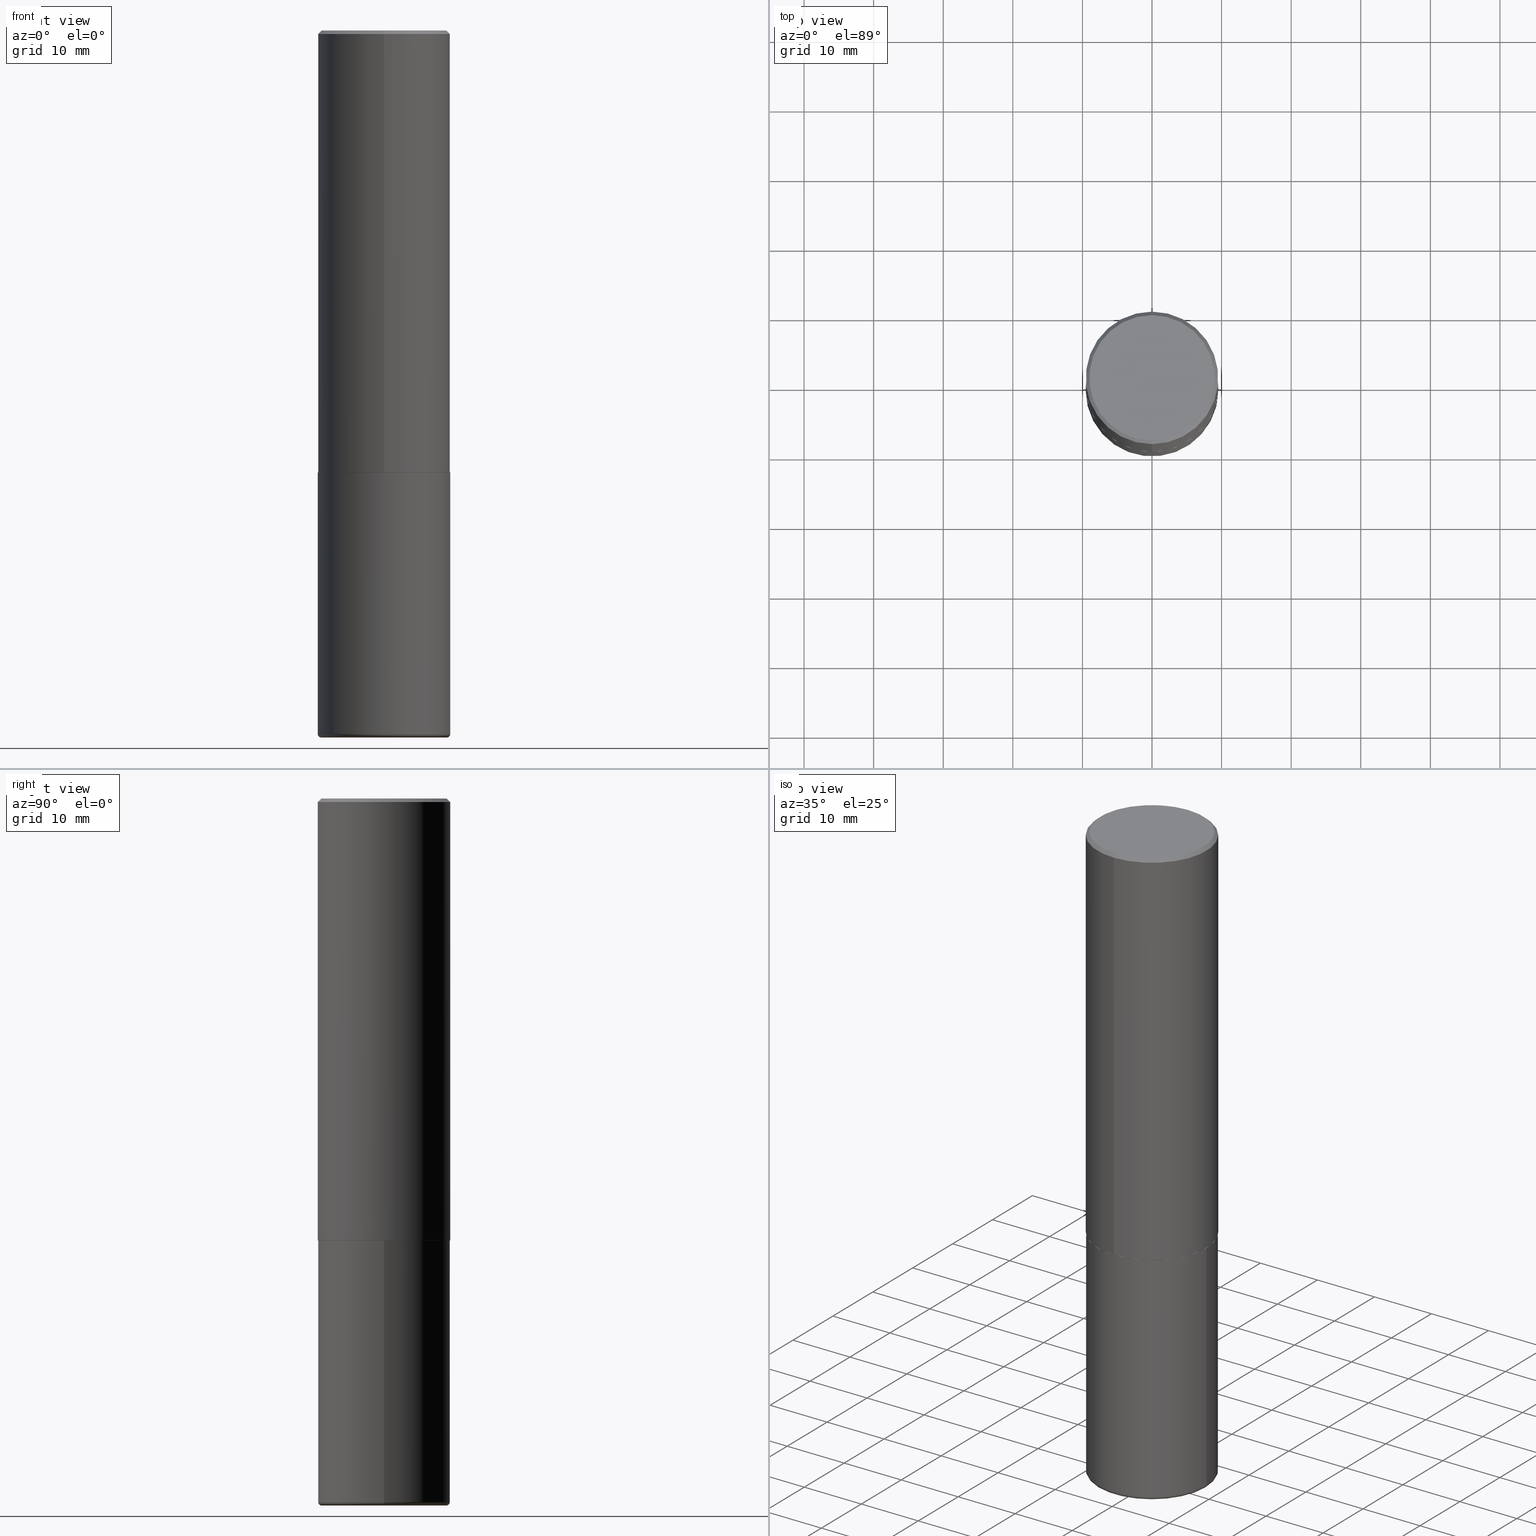
[diagram: canonical four-view strip — front | top / right | iso, engineering-drawing reading convention]
A machine part, canonical four-view strip (front | top / right | iso — engineering-drawing reading convention). The complete STEP part file that produces these views, byte-faithful:
ISO-10303-21;
HEADER;
FILE_DESCRIPTION (( 'STEP AP203' ),
    '1' );
FILE_NAME ('38290.STEP',
    '2024-03-02T21:03:05',
    ( '' ),
    ( '' ),
    'SwSTEP 2.0',
    'SolidWorks 2023',
    '' );
FILE_SCHEMA (( 'CONFIG_CONTROL_DESIGN' ));
ENDSEC;

DATA;
#1 = CARTESIAN_POINT ( 'NONE',  ( 4.888930263412711914E-31, -6.985837315644786578E-17, -0.02000000000000008715 ) ) ;
#2 = DATE_TIME_ROLE ( 'creation_date' ) ;
#3 = FACE_OUTER_BOUND ( 'NONE', #303, .T. ) ;
#4 = ORIENTED_EDGE ( 'NONE', *, *, #342, .T. ) ;
#5 = AXIS2_PLACEMENT_3D ( 'NONE', #1, #327, #164 ) ;
#6 = AXIS2_PLACEMENT_3D ( 'NONE', #175, #411, #150 ) ;
#7 = ADVANCED_FACE ( 'NONE', ( #33 ), #179, .T. ) ;
#8 = DIRECTION ( 'NONE',  ( -6.982962677686266711E-15, -1.000000000000000000, 2.921762560068730595E-15 ) ) ;
#9 = FACE_OUTER_BOUND ( 'NONE', #44, .T. ) ;
#10 = DIRECTION ( 'NONE',  ( -2.445468806185136597E-29, 3.491481338843145583E-15, 1.000000000000000000 ) ) ;
#11 = AXIS2_PLACEMENT_3D ( 'NONE', #15, #362, #361 ) ;
#12 = CARTESIAN_POINT ( 'NONE',  ( 2.478951750578623815E-15, 0.3549999999999999267, -1.205582899487326820E-15 ) ) ;
#13 = CYLINDRICAL_SURFACE ( 'NONE', #183, 0.3750000000000000555 ) ;
#14 = EDGE_CURVE ( 'NONE', #56, #34, #413, .T. ) ;
#15 = CARTESIAN_POINT ( 'NONE',  ( -0.3550000000000000377, -1.137366901664736350E-14, -3.979999999999999982 ) ) ;
#16 = CIRCLE ( 'NONE', #246, 0.3739999999999999991 ) ;
#17 = DIRECTION ( 'NONE',  ( 1.000000000000000000, -6.982962677686265922E-15, 4.876176775795935793E-29 ) ) ;
#18 = ORIENTED_EDGE ( 'NONE', *, *, #205, .T. ) ;
#19 = ORIENTED_EDGE ( 'NONE', *, *, #369, .T. ) ;
#20 = EDGE_CURVE ( 'NONE', #214, #374, #99, .T. ) ;
#21 = AXIS2_PLACEMENT_3D ( 'NONE', #100, #387, #222 ) ;
#22 = DIRECTION ( 'NONE',  ( -2.444465131706345255E-29, 3.492918657822378473E-15, 1.000000000000000000 ) ) ;
#23 = ORIENTED_EDGE ( 'NONE', *, *, #195, .T. ) ;
#24 =( LENGTH_UNIT ( ) NAMED_UNIT ( * ) SI_UNIT ( $, .METRE. ) );
#25 = ORIENTED_EDGE ( 'NONE', *, *, #53, .T. ) ;
#26 = EDGE_CURVE ( 'NONE', #198, #214, #230, .T. ) ;
#27 = EDGE_LOOP ( 'NONE', ( #347, #242, #309, #378 ) ) ;
#28 = APPROVAL_STATUS ( 'not_yet_approved' ) ;
#29 = DIRECTION ( 'NONE',  ( 6.982962677686265922E-15, 1.000000000000000000, -3.494488891895536035E-15 ) ) ;
#30 = CALENDAR_DATE ( 2024, 2, 3 ) ;
#31 = DIRECTION ( 'NONE',  ( 1.000000000000000000, -6.982962677686264344E-15, 0.000000000000000000 ) ) ;
#32 = CALENDAR_DATE ( 2024, 2, 3 ) ;
#33 = FACE_OUTER_BOUND ( 'NONE', #151, .T. ) ;
#34 = VERTEX_POINT ( 'NONE', #95 ) ;
#35 = CC_DESIGN_PERSON_AND_ORGANIZATION_ASSIGNMENT ( #94, #128, ( #174 ) ) ;
#36 = DATE_AND_TIME ( #281, #203 ) ;
#37 = FACE_OUTER_BOUND ( 'NONE', #266, .T. ) ;
#38 = CIRCLE ( 'NONE', #11, 0.01999999999999992409 ) ;
#39 = DIRECTION ( 'NONE',  ( 1.000000000000000000, -6.982962677686266711E-15, 0.000000000000000000 ) ) ;
#40 = CARTESIAN_POINT ( 'NONE',  ( 0.000000000000000000, 0.000000000000000000, 0.000000000000000000 ) ) ;
#41 = CARTESIAN_POINT ( 'NONE',  ( 6.108718364134156127E-29, -8.728803725898123939E-15, -2.498999999999999666 ) ) ;
#42 = CLOSED_SHELL ( 'NONE', ( #132, #396, #7, #69, #365, #97, #409, #211 ) ) ;
#43 = AXIS2_PLACEMENT_3D ( 'NONE', #52, #375, #58 ) ;
#44 = EDGE_LOOP ( 'NONE', ( #408, #343, #25, #93 ) ) ;
#45 = CARTESIAN_POINT ( 'NONE',  ( 2.660982545421636724E-15, 0.3739999999999912839, -2.500000000000001332 ) ) ;
#46 = DIRECTION ( 'NONE',  ( 1.000000000000000000, -6.982962677686263555E-15, 0.000000000000000000 ) ) ;
#47 = EDGE_CURVE ( 'NONE', #412, #209, #399, .T. ) ;
#48 = DIRECTION ( 'NONE',  ( 1.000000000000000000, -6.982962677686264344E-15, 0.000000000000000000 ) ) ;
#49 = CIRCLE ( 'NONE', #325, 0.3750000000000002776 ) ;
#50 = APPLICATION_PROTOCOL_DEFINITION ( 'international standard', 'config_control_design', 1994, #310 ) ;
#51 = ORIENTED_EDGE ( 'NONE', *, *, #152, .F. ) ;
#52 = CARTESIAN_POINT ( 'NONE',  ( 4.888930263412711914E-31, -6.985837315644786578E-17, -0.02000000000000008715 ) ) ;
#53 = EDGE_CURVE ( 'NONE', #34, #54, #314, .T. ) ;
#54 = VERTEX_POINT ( 'NONE', #356 ) ;
#55 = DIRECTION ( 'NONE',  ( -2.445468806185136877E-29, 3.491481338843145188E-15, 1.000000000000000000 ) ) ;
#56 = VERTEX_POINT ( 'NONE', #68 ) ;
#57 = CIRCLE ( 'NONE', #191, 0.3750000000000000555 ) ;
#58 = DIRECTION ( 'NONE',  ( -6.982962677686265922E-15, -1.000000000000000000, 3.494488891895536035E-15 ) ) ;
#59 = ORIENTED_EDGE ( 'NONE', *, *, #14, .F. ) ;
#60 = ADVANCED_FACE ( 'NONE', ( #3 ), #359, .T. ) ;
#61 = CARTESIAN_POINT ( 'NONE',  ( 0.000000000000000000, 0.000000000000000000, 0.000000000000000000 ) ) ;
#62 = EDGE_LOOP ( 'NONE', ( #23, #18, #276, #235 ) ) ;
#63 = DIRECTION ( 'NONE',  ( -4.851104656540961119E-15, -0.7071067811865495711, -0.7071067811865454633 ) ) ;
#64 = APPROVAL_DATE_TIME ( #36, #136 ) ;
#65 = VECTOR ( 'NONE', #77, 39.37007874015748143 ) ;
#66 = LOCAL_TIME ( 16, 3, 5.000000000000000000, #196 ) ;
#67 = APPROVAL_DATE_TIME ( #221, #189 ) ;
#68 = CARTESIAN_POINT ( 'NONE',  ( -0.3749999999999999445, -1.123156046949534334E-14, -3.979999999999999982 ) ) ;
#69 = ADVANCED_FACE ( 'NONE', ( #37 ), #131, .T. ) ;
#70 = ORIENTED_EDGE ( 'NONE', *, *, #342, .F. ) ;
#71 = CALENDAR_DATE ( 2024, 2, 3 ) ;
#72 = PERSON_AND_ORGANIZATION_ROLE ( 'design_supplier' ) ;
#73 = DIRECTION ( 'NONE',  ( -2.444465131706345255E-29, 3.492918657822378473E-15, 1.000000000000000000 ) ) ;
#74 = AXIS2_PLACEMENT_3D ( 'NONE', #379, #147, #268 ) ;
#75 = FACE_OUTER_BOUND ( 'NONE', #113, .T. ) ;
#76 = CARTESIAN_POINT ( 'NONE',  ( 2.548781377355487113E-15, 0.3549999999999999267, -1.171179675447709813E-15 ) ) ;
#77 = DIRECTION ( 'NONE',  ( -2.444465131706345255E-29, 3.492918657822378868E-15, 1.000000000000000000 ) ) ;
#78 = CLOSED_SHELL ( 'NONE', ( #218, #267, #275, #82, #60, #391 ) ) ;
#79 = DIMENSIONAL_EXPONENTS ( 1.000000000000000000, 0.000000000000000000, 0.000000000000000000, 0.000000000000000000, 0.000000000000000000, 0.000000000000000000, 0.000000000000000000 ) ;
#80 = AXIS2_PLACEMENT_3D ( 'NONE', #166, #138, #295 ) ;
#81 = CARTESIAN_POINT ( 'NONE',  ( 6.113672015462840371E-29, -8.728703347107863365E-15, -2.499999999999999556 ) ) ;
#82 = ADVANCED_FACE ( 'NONE', ( #9 ), #137, .T. ) ;
#83 = ORIENTED_EDGE ( 'NONE', *, *, #239, .T. ) ;
#84 = AXIS2_PLACEMENT_3D ( 'NONE', #157, #289, #8 ) ;
#85 = MECHANICAL_CONTEXT ( 'NONE', #310, 'mechanical' ) ;
#86 = ORIENTED_EDGE ( 'NONE', *, *, #170, .F. ) ;
#87 = PRODUCT ( '38290', '38290', '', ( #85 ) ) ;
#88 = CARTESIAN_POINT ( 'NONE',  ( -2.572686749164323547E-15, -0.3750000000000001110, -0.01999999999999877570 ) ) ;
#89 = ORIENTED_EDGE ( 'NONE', *, *, #416, .T. ) ;
#90 = ORIENTED_EDGE ( 'NONE', *, *, #261, .T. ) ;
#91 = LOCAL_TIME ( 16, 3, 5.000000000000000000, #355 ) ;
#92 = FACE_OUTER_BOUND ( 'NONE', #27, .T. ) ;
#93 = ORIENTED_EDGE ( 'NONE', *, *, #315, .F. ) ;
#94 = PERSON_AND_ORGANIZATION ( #291, #326 ) ;
#95 = CARTESIAN_POINT ( 'NONE',  ( 0.3749999999999999445, -1.651470673272807063E-14, -3.979999999999999982 ) ) ;
#96 = PERSON_AND_ORGANIZATION ( #291, #326 ) ;
#97 = ADVANCED_FACE ( 'NONE', ( #249 ), #388, .T. ) ;
#98 = CIRCLE ( 'NONE', #414, 0.3750000000000000555 ) ;
#99 = LINE ( 'NONE', #133, #366 ) ;
#100 = CARTESIAN_POINT ( 'NONE',  ( 9.732965848616844417E-29, -1.389609572859572061E-14, -3.979999999999999982 ) ) ;
#101 = APPLICATION_CONTEXT ( 'configuration controlled 3d designs of mechanical parts and assemblies' ) ;
#102 = DIRECTION ( 'NONE',  ( 2.444465131706345255E-29, -3.492918657822378473E-15, -1.000000000000000000 ) ) ;
#103 = DIRECTION ( 'NONE',  ( 2.444465131706344694E-29, -3.492918657822378868E-15, -1.000000000000000000 ) ) ;
#104 = AXIS2_PLACEMENT_3D ( 'NONE', #339, #115, #240 ) ;
#105 = CARTESIAN_POINT ( 'NONE',  ( 6.113672015462840371E-29, -8.728703347107863365E-15, -2.499999999999999556 ) ) ;
#106 = CARTESIAN_POINT ( 'NONE',  ( -0.3750000000000000555, -8.647864278751415502E-15, -2.499999999999999556 ) ) ;
#107 = CARTESIAN_POINT ( 'NONE',  ( -2.618611004132290852E-15, -0.3750000000000090483, -2.498999999999998778 ) ) ;
#108 = EDGE_CURVE ( 'NONE', #54, #238, #98, .T. ) ;
#109 = AXIS2_PLACEMENT_3D ( 'NONE', #201, #297, #398 ) ;
#110 = DIRECTION ( 'NONE',  ( -2.444465131706345255E-29, 3.492918657822378868E-15, 1.000000000000000000 ) ) ;
#111 = CYLINDRICAL_SURFACE ( 'NONE', #330, 0.3750000000000001665 ) ;
#112 = DIRECTION ( 'NONE',  ( 2.438088387897960049E-29, -3.491481338843145188E-15, -1.000000000000000000 ) ) ;
#113 = EDGE_LOOP ( 'NONE', ( #4, #148 ) ) ;
#114 = CIRCLE ( 'NONE', #307, 0.3750000000000000555 ) ;
#115 = DIRECTION ( 'NONE',  ( -2.444465131706345255E-29, 3.492918657822378473E-15, 1.000000000000000000 ) ) ;
#116 = ORIENTED_EDGE ( 'NONE', *, *, #108, .T. ) ;
#117 = DESIGN_CONTEXT ( 'detailed design', #101, 'design' ) ;
#118 = CARTESIAN_POINT ( 'NONE',  ( -2.504081769186608216E-15, -0.3549999999999999267, 1.308792571606178433E-15 ) ) ;
#119 = ORIENTED_EDGE ( 'NONE', *, *, #283, .F. ) ;
#120 = ORIENTED_EDGE ( 'NONE', *, *, #205, .F. ) ;
#121 = CARTESIAN_POINT ( 'NONE',  ( 0.000000000000000000, 0.000000000000000000, 0.000000000000000000 ) ) ;
#122 = EDGE_CURVE ( 'NONE', #412, #376, #158, .T. ) ;
#123 = VERTEX_POINT ( 'NONE', #256 ) ;
#124 = COORDINATED_UNIVERSAL_TIME_OFFSET ( 5, 0, .BEHIND. ) ;
#125 = APPROVAL_ROLE ( '' ) ;
#126 = DIRECTION ( 'NONE',  ( 1.000000000000000000, -6.982962677686265922E-15, 4.876176775795935793E-29 ) ) ;
#127 = ORIENTED_EDGE ( 'NONE', *, *, #47, .F. ) ;
#128 = PERSON_AND_ORGANIZATION_ROLE ( 'classification_officer' ) ;
#129 = CARTESIAN_POINT ( 'NONE',  ( -2.572686749164323547E-15, -0.3750000000000001110, -0.01999999999999877570 ) ) ;
#130 = CALENDAR_DATE ( 2024, 2, 3 ) ;
#131 = CONICAL_SURFACE ( 'NONE', #5, 0.3750000000000000555, 0.7853981633974477239 ) ;
#132 = ADVANCED_FACE ( 'NONE', ( #225 ), #139, .T. ) ;
#133 = CARTESIAN_POINT ( 'NONE',  ( 2.657429831742835431E-15, 0.3739999999999912839, -2.500000000000001332 ) ) ;
#134 = DATE_TIME_ROLE ( 'classification_date' ) ;
#135 = CARTESIAN_POINT ( 'NONE',  ( 6.113672015462840371E-29, -8.728703347107863365E-15, -2.499999999999999556 ) ) ;
#136 = APPROVAL ( #28, 'UNSPECIFIED' ) ;
#137 = CYLINDRICAL_SURFACE ( 'NONE', #149, 0.3750000000000000555 ) ;
#138 = DIRECTION ( 'NONE',  ( -6.982962677686266711E-15, -1.000000000000000000, 3.491481338843145583E-15 ) ) ;
#139 = CONICAL_SURFACE ( 'NONE', #394, 0.3739999999999999991, 0.7853981633974141952 ) ;
#140 = DIRECTION ( 'NONE',  ( -2.444465131706345255E-29, 3.492918657822378473E-15, 1.000000000000000000 ) ) ;
#141 = PRODUCT_DEFINITION ( 'UNKNOWN', '', #380, #117 ) ;
#142 = CARTESIAN_POINT ( 'NONE',  ( 2.664535259100376486E-15, 0.3750000000000001665, -1.309844496683392470E-15 ) ) ;
#143 = CARTESIAN_POINT ( 'NONE',  ( -2.611628041454602471E-15, -0.3740000000000087699, -2.499999999999999112 ) ) ;
#144 = VECTOR ( 'NONE', #390, 39.37007874015748143 ) ;
#145 = FACE_OUTER_BOUND ( 'NONE', #176, .T. ) ;
#146 = ORIENTED_EDGE ( 'NONE', *, *, #26, .T. ) ;
#147 = DIRECTION ( 'NONE',  ( -2.445468806185136597E-29, 3.491481338843145583E-15, 1.000000000000000000 ) ) ;
#148 = ORIENTED_EDGE ( 'NONE', *, *, #47, .T. ) ;
#149 = AXIS2_PLACEMENT_3D ( 'NONE', #193, #319, #126 ) ;
#150 = DIRECTION ( 'NONE',  ( -6.982962677686265922E-15, -1.000000000000000000, 3.492918657822378868E-15 ) ) ;
#151 = EDGE_LOOP ( 'NONE', ( #127, #305, #154, #272 ) ) ;
#152 = EDGE_CURVE ( 'NONE', #278, #313, #345, .T. ) ;
#153 = CARTESIAN_POINT ( 'NONE',  ( 9.781875224740546387E-29, -1.396592535537258233E-14, -4.000000000000000000 ) ) ;
#154 = ORIENTED_EDGE ( 'NONE', *, *, #348, .T. ) ;
#155 = ORIENTED_EDGE ( 'NONE', *, *, #26, .F. ) ;
#156 = PERSON_AND_ORGANIZATION ( #291, #326 ) ;
#157 = CARTESIAN_POINT ( 'NONE',  ( 6.111162829265863557E-29, -8.732296644555947170E-15, -2.500000000000000000 ) ) ;
#158 = LINE ( 'NONE', #129, #316 ) ;
#159 = PERSON_AND_ORGANIZATION ( #291, #326 ) ;
#160 = CARTESIAN_POINT ( 'NONE',  ( 4.888930263412711914E-31, -6.985837315644786578E-17, -0.02000000000000008715 ) ) ;
#161 = AXIS2_PLACEMENT_3D ( 'NONE', #41, #168, #244 ) ;
#162 = PERSON_AND_ORGANIZATION_ROLE ( 'creator' ) ;
#163 = AXIS2_PLACEMENT_3D ( 'NONE', #337, #213, #344 ) ;
#164 = DIRECTION ( 'NONE',  ( 6.982962677686265922E-15, 1.000000000000000000, -3.494488891895536035E-15 ) ) ;
#165 = EDGE_LOOP ( 'NONE', ( #340, #51 ) ) ;
#166 = CARTESIAN_POINT ( 'NONE',  ( 0.3550000000000000377, -1.637504747917434403E-14, -3.979999999999999982 ) ) ;
#167 = AXIS2_PLACEMENT_3D ( 'NONE', #160, #102, #29 ) ;
#168 = DIRECTION ( 'NONE',  ( -2.444465131706345255E-29, 3.492918657822378473E-15, 1.000000000000000000 ) ) ;
#169 = CIRCLE ( 'NONE', #161, 0.3750000000000002776 ) ;
#170 = EDGE_CURVE ( 'NONE', #123, #376, #57, .T. ) ;
#171 = CARTESIAN_POINT ( 'NONE',  ( 9.781875224740546387E-29, -1.396592535537258233E-14, -4.000000000000000000 ) ) ;
#172 = DIRECTION ( 'NONE',  ( -6.982962677686266711E-15, -1.000000000000000000, 2.921762560068730595E-15 ) ) ;
#173 = DIRECTION ( 'NONE',  ( -2.444465131706345255E-29, 3.492918657822378473E-15, 1.000000000000000000 ) ) ;
#174 = SECURITY_CLASSIFICATION ( '', '', #252 ) ;
#175 = CARTESIAN_POINT ( 'NONE',  ( 6.111162829265863557E-29, -8.732296644555947170E-15, -2.500000000000000000 ) ) ;
#176 = EDGE_LOOP ( 'NONE', ( #155, #119 ) ) ;
#177 = ORIENTED_EDGE ( 'NONE', *, *, #335, .T. ) ;
#178 = CYLINDRICAL_SURFACE ( 'NONE', #181, 0.3750000000000001665 ) ;
#179 = CONICAL_SURFACE ( 'NONE', #167, 0.3750000000000000555, 0.7853981633974477239 ) ;
#180 = ORIENTED_EDGE ( 'NONE', *, *, #311, .T. ) ;
#181 = AXIS2_PLACEMENT_3D ( 'NONE', #61, #22, #306 ) ;
#182 = CC_DESIGN_PERSON_AND_ORGANIZATION_ASSIGNMENT ( #159, #162, ( #380 ) ) ;
#183 = AXIS2_PLACEMENT_3D ( 'NONE', #40, #10, #17 ) ;
#184 = CC_DESIGN_APPROVAL ( #189, ( #174 ) ) ;
#185 =( NAMED_UNIT ( * ) PLANE_ANGLE_UNIT ( ) SI_UNIT ( $, .RADIAN. ) );
#186 = ORIENTED_EDGE ( 'NONE', *, *, #108, .F. ) ;
#187 = LINE ( 'NONE', #236, #301 ) ;
#188 = EDGE_LOOP ( 'NONE', ( #146, #405, #223, #243 ) ) ;
#189 = APPROVAL ( #280, 'UNSPECIFIED' ) ;
#190 = DIRECTION ( 'NONE',  ( -2.444465131706345255E-29, 3.492918657822378473E-15, 1.000000000000000000 ) ) ;
#191 = AXIS2_PLACEMENT_3D ( 'NONE', #368, #367, #328 ) ;
#192 = PERSON_AND_ORGANIZATION ( #291, #326 ) ;
#193 = CARTESIAN_POINT ( 'NONE',  ( 0.000000000000000000, 0.000000000000000000, 0.000000000000000000 ) ) ;
#194 = APPROVAL_STATUS ( 'not_yet_approved' ) ;
#195 = EDGE_CURVE ( 'NONE', #313, #278, #354, .T. ) ;
#196 = COORDINATED_UNIVERSAL_TIME_OFFSET ( 5, 0, .BEHIND. ) ;
#197 = LOCAL_TIME ( 16, 3, 5.000000000000000000, #382 ) ;
#198 = VERTEX_POINT ( 'NONE', #143 ) ;
#199 = PLANE ( 'NONE',  #237 ) ;
#200 = FACE_OUTER_BOUND ( 'NONE', #410, .T. ) ;
#201 = CARTESIAN_POINT ( 'NONE',  ( 9.732965848616844417E-29, -1.389609572859572061E-14, -3.979999999999999982 ) ) ;
#202 = VECTOR ( 'NONE', #110, 39.37007874015748143 ) ;
#203 = LOCAL_TIME ( 16, 3, 5.000000000000000000, #124 ) ;
#204 = CARTESIAN_POINT ( 'NONE',  ( 6.111162829265863557E-29, -8.732296644555947170E-15, -2.500000000000000000 ) ) ;
#205 = EDGE_CURVE ( 'NONE', #278, #56, #38, .T. ) ;
#206 = DIRECTION ( 'NONE',  ( -2.445468806185136597E-29, 3.491481338843145583E-15, 1.000000000000000000 ) ) ;
#207 = ORIENTED_EDGE ( 'NONE', *, *, #122, .F. ) ;
#208 = LINE ( 'NONE', #210, #251 ) ;
#209 = VERTEX_POINT ( 'NONE', #76 ) ;
#210 = CARTESIAN_POINT ( 'NONE',  ( -0.3750000000000000555, 2.664535259100376091E-15, -1.844600658845589598E-29 ) ) ;
#211 = ADVANCED_FACE ( 'NONE', ( #75 ), #199, .F. ) ;
#212 = VERTEX_POINT ( 'NONE', #107 ) ;
#213 = DIRECTION ( 'NONE',  ( 0.000000000000000000, 0.000000000000000000, 1.000000000000000000 ) ) ;
#214 = VERTEX_POINT ( 'NONE', #45 ) ;
#215 = CIRCLE ( 'NONE', #43, 0.3750000000000000555 ) ;
#216 = PLANE ( 'NONE',  #6 ) ;
#217 = ORIENTED_EDGE ( 'NONE', *, *, #152, .T. ) ;
#218 = ADVANCED_FACE ( 'NONE', ( #298 ), #13, .T. ) ;
#219 = ORIENTED_EDGE ( 'NONE', *, *, #293, .T. ) ;
#220 = CIRCLE ( 'NONE', #104, 0.3549999999999999267 ) ;
#221 = DATE_AND_TIME ( #30, #415 ) ;
#222 = DIRECTION ( 'NONE',  ( 1.000000000000000000, -6.982962677686269077E-15, 4.883557194083113462E-29 ) ) ;
#223 = ORIENTED_EDGE ( 'NONE', *, *, #320, .F. ) ;
#224 = APPROVAL_DATE_TIME ( #351, #253 ) ;
#225 = FACE_OUTER_BOUND ( 'NONE', #188, .T. ) ;
#226 = APPROVAL_PERSON_ORGANIZATION ( #192, #136, #125 ) ;
#227 = CARTESIAN_POINT ( 'NONE',  ( -2.618611004132351200E-15, -0.3750000000000001665, 1.309844496683392470E-15 ) ) ;
#228 = DIRECTION ( 'NONE',  ( -2.445468806185136597E-29, 3.491481338843145583E-15, 1.000000000000000000 ) ) ;
#229 = DIRECTION ( 'NONE',  ( 4.937700262164544887E-15, 0.7071067811865446862, -0.7071067811865503483 ) ) ;
#230 = CIRCLE ( 'NONE', #286, 0.3739999999999999991 ) ;
#231 = LINE ( 'NONE', #260, #263 ) ;
#232 = CARTESIAN_POINT ( 'NONE',  ( 0.3550000000000000377, -1.644487710595120733E-14, -4.000000000000000000 ) ) ;
#233 = CC_DESIGN_PERSON_AND_ORGANIZATION_ASSIGNMENT ( #156, #322, ( #87 ) ) ;
#234 = FACE_OUTER_BOUND ( 'NONE', #165, .T. ) ;
#235 = ORIENTED_EDGE ( 'NONE', *, *, #311, .F. ) ;
#236 = CARTESIAN_POINT ( 'NONE',  ( -2.611628041454602471E-15, -0.3740000000000087699, -2.499999999999999112 ) ) ;
#237 = AXIS2_PLACEMENT_3D ( 'NONE', #12, #103, #334 ) ;
#238 = VERTEX_POINT ( 'NONE', #106 ) ;
#239 = EDGE_CURVE ( 'NONE', #209, #123, #231, .T. ) ;
#240 = DIRECTION ( 'NONE',  ( -6.982962677686265922E-15, -1.000000000000000000, 3.492918657822378079E-15 ) ) ;
#241 = PRODUCT_DEFINITION_SHAPE ( 'NONE', 'NONE',  #141 ) ;
#242 = ORIENTED_EDGE ( 'NONE', *, *, #265, .T. ) ;
#243 = ORIENTED_EDGE ( 'NONE', *, *, #416, .F. ) ;
#244 = DIRECTION ( 'NONE',  ( -6.982962677686266711E-15, -1.000000000000000000, 2.913971193241878794E-15 ) ) ;
#245 = ORIENTED_EDGE ( 'NONE', *, *, #53, .F. ) ;
#246 = AXIS2_PLACEMENT_3D ( 'NONE', #204, #333, #172 ) ;
#247 = CC_DESIGN_APPROVAL ( #136, ( #141 ) ) ;
#248 = PERSON_AND_ORGANIZATION ( #291, #326 ) ;
#249 = FACE_OUTER_BOUND ( 'NONE', #350, .T. ) ;
#250 = COORDINATED_UNIVERSAL_TIME_OFFSET ( 5, 0, .BEHIND. ) ;
#251 = VECTOR ( 'NONE', #55, 39.37007874015748143 ) ;
#252 = SECURITY_CLASSIFICATION_LEVEL ( 'unclassified' ) ;
#253 = APPROVAL ( #194, 'UNSPECIFIED' ) ;
#254 = DIRECTION ( 'NONE',  ( -6.982962677686266711E-15, -1.000000000000000000, 2.921762560068730595E-15 ) ) ;
#255 = PERSON_AND_ORGANIZATION_ROLE ( 'creator' ) ;
#256 = CARTESIAN_POINT ( 'NONE',  ( 2.618611004132350411E-15, 0.3749999999999999445, -0.02000000000000139513 ) ) ;
#257 = DIRECTION ( 'NONE',  ( -6.982962677686266711E-15, -1.000000000000000000, 2.913971193241878794E-15 ) ) ;
#258 = CC_DESIGN_PERSON_AND_ORGANIZATION_ASSIGNMENT ( #284, #72, ( #380 ) ) ;
#259 = CARTESIAN_POINT ( 'NONE',  ( 9.781875224740546387E-29, -1.396592535537258233E-14, -4.000000000000000000 ) ) ;
#260 = CARTESIAN_POINT ( 'NONE',  ( 2.618611004132350411E-15, 0.3749999999999999445, -0.02000000000000139513 ) ) ;
#261 = EDGE_CURVE ( 'NONE', #374, #212, #49, .T. ) ;
#262 = FACE_OUTER_BOUND ( 'NONE', #62, .T. ) ;
#263 = VECTOR ( 'NONE', #229, 39.37007874015748143 ) ;
#264 = DIRECTION ( 'NONE',  ( 2.438088387897960049E-29, -3.491481338843145188E-15, -1.000000000000000000 ) ) ;
#265 = EDGE_CURVE ( 'NONE', #374, #123, #395, .T. ) ;
#266 = EDGE_LOOP ( 'NONE', ( #207, #70, #83, #308 ) ) ;
#267 = ADVANCED_FACE ( 'NONE', ( #262 ), #279, .T. ) ;
#268 = DIRECTION ( 'NONE',  ( 1.000000000000000000, -6.982962677686266711E-15, 0.000000000000000000 ) ) ;
#269 = AXIS2_PLACEMENT_3D ( 'NONE', #153, #112, #341 ) ;
#270 = ORIENTED_EDGE ( 'NONE', *, *, #20, .F. ) ;
#271 = MANIFOLD_SOLID_BREP ( 'Body-Move/Copy2[1]', #78 ) ;
#272 = ORIENTED_EDGE ( 'NONE', *, *, #239, .F. ) ;
#273 = MANIFOLD_SOLID_BREP ( 'Body-Move/Copy2[2]', #42 ) ;
#274 = PLANE ( 'NONE',  #269 ) ;
#275 = ADVANCED_FACE ( 'NONE', ( #200 ), #401, .F. ) ;
#276 = ORIENTED_EDGE ( 'NONE', *, *, #335, .F. ) ;
#277 = DATE_AND_TIME ( #32, #91 ) ;
#278 = VERTEX_POINT ( 'NONE', #331 ) ;
#279 = TOROIDAL_SURFACE ( 'NONE', #109, 0.3550000000000000377, 0.01999999999999988939 ) ;
#280 = APPROVAL_STATUS ( 'not_yet_approved' ) ;
#281 = CALENDAR_DATE ( 2024, 2, 3 ) ;
#282 = CARTESIAN_POINT ( 'NONE',  ( -1.681949631662511627E-45, 2.403353262744440834E-31, 6.880644807923424831E-17 ) ) ;
#283 = EDGE_CURVE ( 'NONE', #214, #198, #16, .T. ) ;
#284 = PERSON_AND_ORGANIZATION ( #291, #326 ) ;
#285 = DIRECTION ( 'NONE',  ( -2.445468806185136597E-29, 3.491481338843145583E-15, 1.000000000000000000 ) ) ;
#286 = AXIS2_PLACEMENT_3D ( 'NONE', #353, #73, #254 ) ;
#287 = AXIS2_PLACEMENT_3D ( 'NONE', #171, #228, #392 ) ;
#288 =( GEOMETRIC_REPRESENTATION_CONTEXT ( 3 ) GLOBAL_UNCERTAINTY_ASSIGNED_CONTEXT ( ( #321 ) ) GLOBAL_UNIT_ASSIGNED_CONTEXT ( ( #404, #185, #403 ) ) REPRESENTATION_CONTEXT ( 'NONE', 'WORKASPACE' ) );
#289 = DIRECTION ( 'NONE',  ( -2.444465131706345255E-29, 3.492918657822378473E-15, 1.000000000000000000 ) ) ;
#290 = ORIENTED_EDGE ( 'NONE', *, *, #315, .T. ) ;
#291 = PERSON ( 'UNSPECIFIED', 'UNSPECIFIED', 'UNSPECIFIED', ('UNSPECIFIED'), ('UNSPECIFIED'), ('UNSPECIFIED') ) ;
#292 = DIRECTION ( 'NONE',  ( -6.982962677686265922E-15, -1.000000000000000000, 3.492918657822378079E-15 ) ) ;
#293 = EDGE_CURVE ( 'NONE', #212, #376, #299, .T. ) ;
#294 = EDGE_LOOP ( 'NONE', ( #177, #19, #186, #245 ) ) ;
#295 = DIRECTION ( 'NONE',  ( 1.000000000000000000, -6.982962677686262766E-15, 0.000000000000000000 ) ) ;
#296 = AXIS2_PLACEMENT_3D ( 'NONE', #81, #264, #329 ) ;
#297 = DIRECTION ( 'NONE',  ( -2.445468806185136597E-29, 3.491481338843145583E-15, 1.000000000000000000 ) ) ;
#298 = FACE_OUTER_BOUND ( 'NONE', #294, .T. ) ;
#299 = LINE ( 'NONE', #227, #202 ) ;
#300 = DIRECTION ( 'NONE',  ( -6.982962677686266711E-15, -1.000000000000000000, 2.921762560068730595E-15 ) ) ;
#301 = VECTOR ( 'NONE', #312, 39.37007874015748854 ) ;
#302 = DIRECTION ( 'NONE',  ( -6.982962677686266711E-15, -1.000000000000000000, 3.492918657822378473E-15 ) ) ;
#303 = EDGE_LOOP ( 'NONE', ( #120, #217, #180, #59 ) ) ;
#304 = CARTESIAN_POINT ( 'NONE',  ( 2.664535259100408040E-15, 0.3749999999999915623, -2.499000000000000998 ) ) ;
#305 = ORIENTED_EDGE ( 'NONE', *, *, #122, .T. ) ;
#306 = DIRECTION ( 'NONE',  ( -6.982962677686266711E-15, -1.000000000000000000, 3.492918657822378473E-15 ) ) ;
#307 = AXIS2_PLACEMENT_3D ( 'NONE', #105, #206, #48 ) ;
#308 = ORIENTED_EDGE ( 'NONE', *, *, #170, .T. ) ;
#309 = ORIENTED_EDGE ( 'NONE', *, *, #348, .F. ) ;
#310 = APPLICATION_CONTEXT ( 'configuration controlled 3d designs of mechanical parts and assemblies' ) ;
#311 = EDGE_CURVE ( 'NONE', #313, #34, #400, .T. ) ;
#312 = DIRECTION ( 'NONE',  ( -4.937700262164378437E-15, -0.7071067811865208164, 0.7071067811865739960 ) ) ;
#313 = VERTEX_POINT ( 'NONE', #232 ) ;
#314 = LINE ( 'NONE', #383, #144 ) ;
#315 = EDGE_CURVE ( 'NONE', #238, #54, #114, .T. ) ;
#316 = VECTOR ( 'NONE', #63, 39.37007874015748143 ) ;
#317 = CC_DESIGN_SECURITY_CLASSIFICATION ( #174, ( #380 ) ) ;
#318 = APPROVAL_ROLE ( '' ) ;
#319 = DIRECTION ( 'NONE',  ( -2.445468806185136597E-29, 3.491481338843145583E-15, 1.000000000000000000 ) ) ;
#320 = EDGE_CURVE ( 'NONE', #212, #374, #169, .T. ) ;
#321 = UNCERTAINTY_MEASURE_WITH_UNIT (LENGTH_MEASURE( 1.000000000000000082E-05 ), #404, 'distance_accuracy_value', 'NONE');
#322 = PERSON_AND_ORGANIZATION_ROLE ( 'design_owner' ) ;
#323 = APPLICATION_PROTOCOL_DEFINITION ( 'international standard', 'config_control_design', 1994, #101 ) ;
#324 = CARTESIAN_POINT ( 'NONE',  ( 9.732965848616844417E-29, -1.389609572859572061E-14, -3.979999999999999982 ) ) ;
#325 = AXIS2_PLACEMENT_3D ( 'NONE', #363, #140, #257 ) ;
#326 = ORGANIZATION ( 'UNSPECIFIED', 'UNSPECIFIED', '' ) ;
#327 = DIRECTION ( 'NONE',  ( 2.444465131706345255E-29, -3.492918657822378473E-15, -1.000000000000000000 ) ) ;
#328 = DIRECTION ( 'NONE',  ( -6.982962677686265922E-15, -1.000000000000000000, 3.494488891895536035E-15 ) ) ;
#329 = DIRECTION ( 'NONE',  ( -1.000000000000000000, 6.982962677686265922E-15, -4.876176775795935793E-29 ) ) ;
#330 = AXIS2_PLACEMENT_3D ( 'NONE', #121, #407, #302 ) ;
#331 = CARTESIAN_POINT ( 'NONE',  ( -0.3550000000000000377, -1.133752955645978664E-14, -4.000000000000000000 ) ) ;
#332 = CC_DESIGN_DATE_AND_TIME_ASSIGNMENT ( #277, #2, ( #141 ) ) ;
#333 = DIRECTION ( 'NONE',  ( -2.444465131706345255E-29, 3.492918657822378473E-15, 1.000000000000000000 ) ) ;
#334 = DIRECTION ( 'NONE',  ( 6.982962677686265922E-15, 1.000000000000000000, -3.492918657822378868E-15 ) ) ;
#335 = EDGE_CURVE ( 'NONE', #34, #56, #406, .T. ) ;
#336 = AXIS2_PLACEMENT_3D ( 'NONE', #282, #190, #292 ) ;
#337 = CARTESIAN_POINT ( 'NONE',  ( 0.000000000000000000, 0.000000000000000000, 0.000000000000000000 ) ) ;
#338 = EDGE_LOOP ( 'NONE', ( #381, #90, #219, #86 ) ) ;
#339 = CARTESIAN_POINT ( 'NONE',  ( -1.681949631662511627E-45, 2.403353262744440834E-31, 6.880644807923424831E-17 ) ) ;
#340 = ORIENTED_EDGE ( 'NONE', *, *, #195, .F. ) ;
#341 = DIRECTION ( 'NONE',  ( -1.000000000000000000, 6.982962677686265922E-15, -4.876176775795935793E-29 ) ) ;
#342 = EDGE_CURVE ( 'NONE', #209, #412, #220, .T. ) ;
#343 = ORIENTED_EDGE ( 'NONE', *, *, #14, .T. ) ;
#344 = DIRECTION ( 'NONE',  ( 1.000000000000000000, 0.000000000000000000, 0.000000000000000000 ) ) ;
#345 = CIRCLE ( 'NONE', #372, 0.3550000000000000377 ) ;
#346 = APPROVAL_PERSON_ORGANIZATION ( #384, #189, #318 ) ;
#347 = ORIENTED_EDGE ( 'NONE', *, *, #320, .T. ) ;
#348 = EDGE_CURVE ( 'NONE', #376, #123, #215, .T. ) ;
#349 = FACE_OUTER_BOUND ( 'NONE', #338, .T. ) ;
#350 = EDGE_LOOP ( 'NONE', ( #270, #371, #89, #417 ) ) ;
#351 = DATE_AND_TIME ( #71, #197 ) ;
#352 = DIRECTION ( 'NONE',  ( 5.024295867787889629E-15, 0.7071067811865257013, 0.7071067811865691111 ) ) ;
#353 = CARTESIAN_POINT ( 'NONE',  ( 6.111162829265863557E-29, -8.732296644555947170E-15, -2.500000000000000000 ) ) ;
#354 = CIRCLE ( 'NONE', #287, 0.3550000000000000377 ) ;
#355 = COORDINATED_UNIVERSAL_TIME_OFFSET ( 5, 0, .BEHIND. ) ;
#356 = CARTESIAN_POINT ( 'NONE',  ( 0.3750000000000000555, -1.134731435124021180E-14, -2.499999999999999556 ) ) ;
#357 = CC_DESIGN_PERSON_AND_ORGANIZATION_ASSIGNMENT ( #248, #255, ( #141 ) ) ;
#358 = CARTESIAN_POINT ( 'NONE',  ( 6.111162829265863557E-29, -8.732296644555947170E-15, -2.500000000000000000 ) ) ;
#359 = TOROIDAL_SURFACE ( 'NONE', #21, 0.3550000000000000377, 0.01999999999999988939 ) ;
#360 = CC_DESIGN_APPROVAL ( #253, ( #380 ) ) ;
#361 = DIRECTION ( 'NONE',  ( -1.000000000000000000, 7.105427357600952160E-15, 0.000000000000000000 ) ) ;
#362 = DIRECTION ( 'NONE',  ( 7.105427357601001859E-15, 1.000000000000000000, -3.491481338843145583E-15 ) ) ;
#363 = CARTESIAN_POINT ( 'NONE',  ( 6.108718364134156127E-29, -8.728803725898123939E-15, -2.498999999999999666 ) ) ;
#364 = ADVANCED_BREP_SHAPE_REPRESENTATION ( '38290', ( #271, #273, #163 ), #288 ) ;
#365 = ADVANCED_FACE ( 'NONE', ( #349 ), #111, .T. ) ;
#366 = VECTOR ( 'NONE', #352, 39.37007874015748854 ) ;
#367 = DIRECTION ( 'NONE',  ( -2.444465131706345255E-29, 3.492918657822378473E-15, 1.000000000000000000 ) ) ;
#368 = CARTESIAN_POINT ( 'NONE',  ( 4.888930263412711914E-31, -6.985837315644786578E-17, -0.02000000000000008715 ) ) ;
#369 = EDGE_CURVE ( 'NONE', #56, #238, #208, .T. ) ;
#370 = LENGTH_MEASURE_WITH_UNIT ( LENGTH_MEASURE( 0.02539999999999999897 ), #24 );
#371 = ORIENTED_EDGE ( 'NONE', *, *, #283, .T. ) ;
#372 = AXIS2_PLACEMENT_3D ( 'NONE', #259, #397, #46 ) ;
#373 = APPROVAL_PERSON_ORGANIZATION ( #96, #253, #418 ) ;
#374 = VERTEX_POINT ( 'NONE', #304 ) ;
#375 = DIRECTION ( 'NONE',  ( -2.444465131706345255E-29, 3.492918657822378473E-15, 1.000000000000000000 ) ) ;
#376 = VERTEX_POINT ( 'NONE', #88 ) ;
#377 = CC_DESIGN_DATE_AND_TIME_ASSIGNMENT ( #389, #134, ( #174 ) ) ;
#378 = ORIENTED_EDGE ( 'NONE', *, *, #293, .F. ) ;
#379 = CARTESIAN_POINT ( 'NONE',  ( 9.732965848616844417E-29, -1.389609572859572061E-14, -3.979999999999999982 ) ) ;
#380 = PRODUCT_DEFINITION_FORMATION_WITH_SPECIFIED_SOURCE ( 'ANY', '', #87, .NOT_KNOWN. ) ;
#381 = ORIENTED_EDGE ( 'NONE', *, *, #265, .F. ) ;
#382 = COORDINATED_UNIVERSAL_TIME_OFFSET ( 5, 0, .BEHIND. ) ;
#383 = CARTESIAN_POINT ( 'NONE',  ( 0.3750000000000000555, -2.618611004132350016E-15, 1.828566290923476203E-29 ) ) ;
#384 = PERSON_AND_ORGANIZATION ( #291, #326 ) ;
#385 = DIRECTION ( 'NONE',  ( -2.445468806185136597E-29, 3.491481338843145583E-15, 1.000000000000000000 ) ) ;
#386 = SHAPE_DEFINITION_REPRESENTATION ( #241, #364 ) ;
#387 = DIRECTION ( 'NONE',  ( -2.445468806185136597E-29, 3.491481338843145583E-15, 1.000000000000000000 ) ) ;
#388 = CONICAL_SURFACE ( 'NONE', #84, 0.3739999999999999991, 0.7853981633974141952 ) ;
#389 = DATE_AND_TIME ( #130, #66 ) ;
#390 = DIRECTION ( 'NONE',  ( -2.445468806185136877E-29, 3.491481338843145188E-15, 1.000000000000000000 ) ) ;
#391 = ADVANCED_FACE ( 'NONE', ( #234 ), #274, .T. ) ;
#392 = DIRECTION ( 'NONE',  ( 1.000000000000000000, -6.982962677686263555E-15, 0.000000000000000000 ) ) ;
#393 = AXIS2_PLACEMENT_3D ( 'NONE', #324, #285, #39 ) ;
#394 = AXIS2_PLACEMENT_3D ( 'NONE', #358, #173, #300 ) ;
#395 = LINE ( 'NONE', #142, #65 ) ;
#396 = ADVANCED_FACE ( 'NONE', ( #92 ), #178, .T. ) ;
#397 = DIRECTION ( 'NONE',  ( -2.445468806185136597E-29, 3.491481338843145583E-15, 1.000000000000000000 ) ) ;
#398 = DIRECTION ( 'NONE',  ( 1.000000000000000000, -6.982962677686269077E-15, 4.883557194083113462E-29 ) ) ;
#399 = CIRCLE ( 'NONE', #336, 0.3549999999999999267 ) ;
#400 = CIRCLE ( 'NONE', #80, 0.01999999999999992409 ) ;
#401 = PLANE ( 'NONE',  #296 ) ;
#402 = PRODUCT_RELATED_PRODUCT_CATEGORY ( 'detail', '', ( #87 ) ) ;
#403 =( NAMED_UNIT ( * ) SI_UNIT ( $, .STERADIAN. ) SOLID_ANGLE_UNIT ( ) );
#404 =( CONVERSION_BASED_UNIT ( 'INCH', #370 ) LENGTH_UNIT ( ) NAMED_UNIT ( #79 ) );
#405 = ORIENTED_EDGE ( 'NONE', *, *, #20, .T. ) ;
#406 = CIRCLE ( 'NONE', #74, 0.3750000000000000555 ) ;
#407 = DIRECTION ( 'NONE',  ( -2.444465131706345255E-29, 3.492918657822378473E-15, 1.000000000000000000 ) ) ;
#408 = ORIENTED_EDGE ( 'NONE', *, *, #369, .F. ) ;
#409 = ADVANCED_FACE ( 'NONE', ( #145 ), #216, .F. ) ;
#410 = EDGE_LOOP ( 'NONE', ( #116, #290 ) ) ;
#411 = DIRECTION ( 'NONE',  ( -2.444465131706344694E-29, 3.492918657822378868E-15, 1.000000000000000000 ) ) ;
#412 = VERTEX_POINT ( 'NONE', #118 ) ;
#413 = CIRCLE ( 'NONE', #393, 0.3750000000000000555 ) ;
#414 = AXIS2_PLACEMENT_3D ( 'NONE', #135, #385, #31 ) ;
#415 = LOCAL_TIME ( 16, 3, 5.000000000000000000, #250 ) ;
#416 = EDGE_CURVE ( 'NONE', #198, #212, #187, .T. ) ;
#417 = ORIENTED_EDGE ( 'NONE', *, *, #261, .F. ) ;
#418 = APPROVAL_ROLE ( '' ) ;
ENDSEC;
END-ISO-10303-21;
